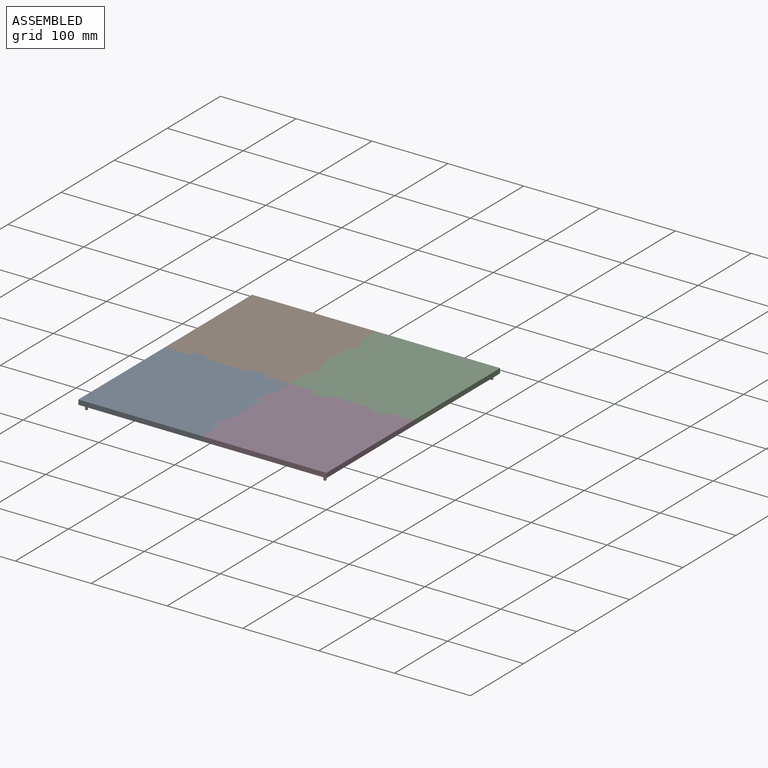
[diagram: assembled view]
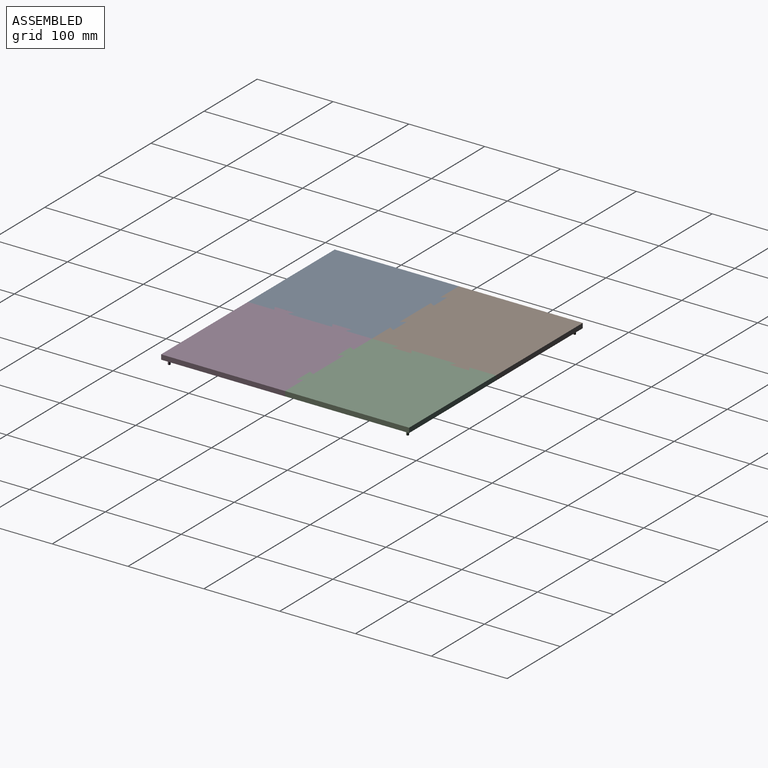
[diagram: assembled view, second angle]
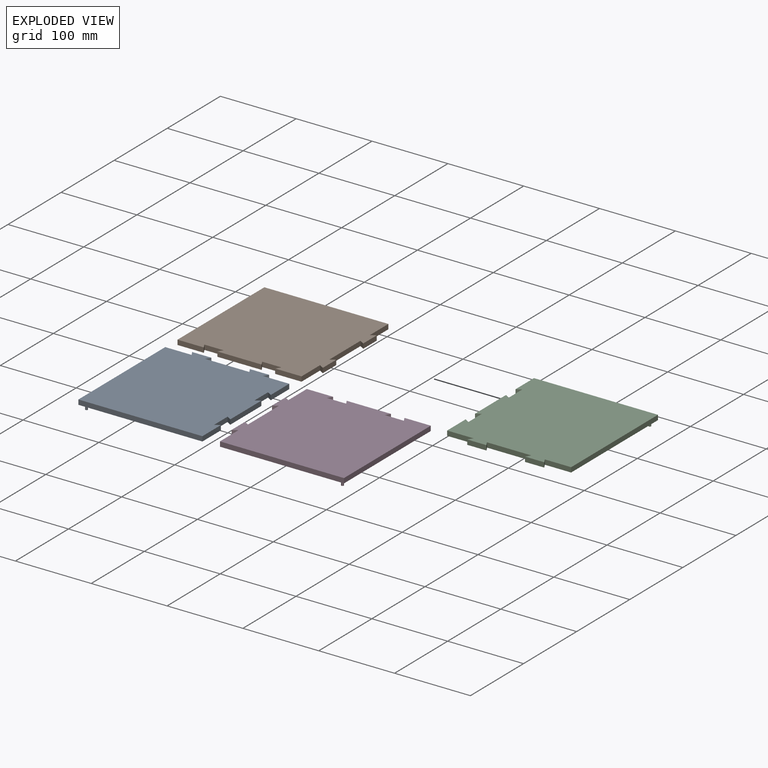
[diagram: exploded view]
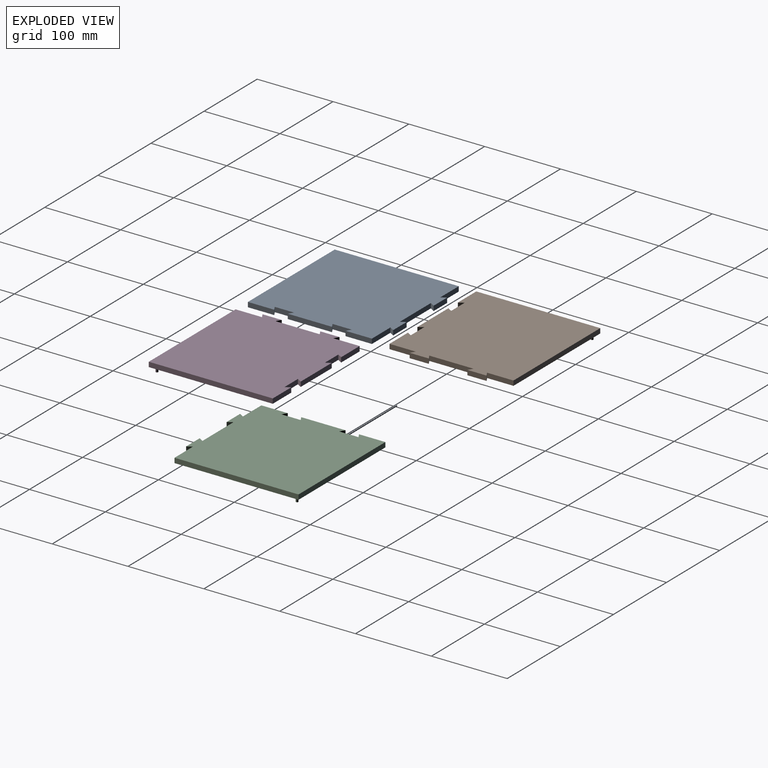
[diagram: exploded view, second angle]
ASSEMBLY  parts=4 mates=3
PART A: 24 faces, bbox 169.9x163.5x12.7 mm
  f0: plane 6.35x6.35mm, normal (-0.86,0.51,0), area 47mm2, adj f1,f19,f20,f21
  f1: plane 58.42x6.35mm, normal (0,-1,0), area 371mm2, adj f0,f2,f20,f21
  f2: plane 6.35x6.35mm, normal (0.86,0.51,0), area 47mm2, adj f1,f3,f20,f21
  f3: plane 25.4x6.35mm, normal (0,-1,0), area 161.3mm2, adj f2,f4,f20,f21
  f4: plane 6.35x6.35mm, normal (-0.86,0.51,0), area 47mm2, adj f3,f5,f20,f21
  f5: plane 34.77x6.35mm, normal (0,-1,0), area 220.8mm2, adj f4,f6,f20,f21
  f6: plane 34.77x6.35mm, normal (1,0,0), area 220.8mm2, adj f5,f7,f20,f21
  f7: plane 6.35x6.35mm, normal (-0.51,-0.86,0), area 47mm2, adj f6,f8,f20,f21
  f8: plane 25.4x6.35mm, normal (1,0,0), area 161.3mm2, adj f7,f9,f20,f21
  f9: plane 6.35x6.35mm, normal (-0.51,0.86,0), area 47mm2, adj f8,f10,f20,f21
  f10: plane 58.42x6.35mm, normal (1,0,0), area 371mm2, adj f9,f11,f20,f21
  f11: plane 6.35x6.35mm, normal (-0.51,-0.86,0), area 47mm2, adj f10,f12,f20,f21
  f12: plane 25.4x6.35mm, normal (1,0,0), area 161.3mm2, adj f11,f13,f20,f21
  f13: plane 6.35x6.35mm, normal (-0.51,0.86,0), area 47mm2, adj f12,f14,f20,f21
  f14: plane 34.77x6.35mm, normal (1,0,0), area 220.8mm2, adj f13,f15,f20,f21
  f15: plane 163.53x6.35mm, normal (0,1,0), area 1038.4mm2, adj f14,f16,f20,f21
  f16: plane 163.53x6.35mm, normal (-1,0,0), area 1038.4mm2, adj f15,f17,f20,f21
  f17: plane 34.77x6.35mm, normal (0,-1,0), area 220.8mm2, adj f16,f18,f20,f21
  f18: plane 6.35x6.35mm, normal (0.86,0.51,0), area 47mm2, adj f17,f19,f20,f21
  f19: plane 25.4x6.35mm, normal (0,-1,0), area 161.3mm2, adj f0,f18,f20,f21
  f20: plane 169.88x163.53mm, normal (0,0,1), area 26740.5mm2, adj f0,f1,f2,f3,f4,f5,f6,f7
  f21: plane 169.88x163.53mm, normal (0,0,-1), area 26732.6mm2, adj f0,f1,f2,f3,f4,f5,f6,f7
  f22: cylinder r=1.59mm len=6.35mm, axis (0,0,1), area 63.3mm2, adj f21,f23
  f23: plane 3.18x3.18mm, normal (0,0,-1), area 7.9mm2, adj f22
PART B: same geometry as A
PART C: same geometry as A
PART D: same geometry as A
PLACE A rot(axis=(0,0,1),90deg) t=(-75.07,-75.58,180.47)mm
PLACE B t=(-75.07,87.94,180.47)mm
PLACE C rot(axis=(0,0,-1),90deg) t=(88.46,87.94,180.47)mm
PLACE D rot(axis=(0,0,1),180deg) t=(88.46,-75.58,180.47)mm
MATE fastened A.f19 <-> D.f12  axis (1,0,0) through (0.35,-113.68,183.64)mm
MATE fastened A.f12 <-> B.f19  axis (0,1,0) through (-113.17,12.53,183.64)mm
MATE fastened C.f19 <-> B.f12  axis (-1,0,0) through (13.05,126.04,183.64)mm
